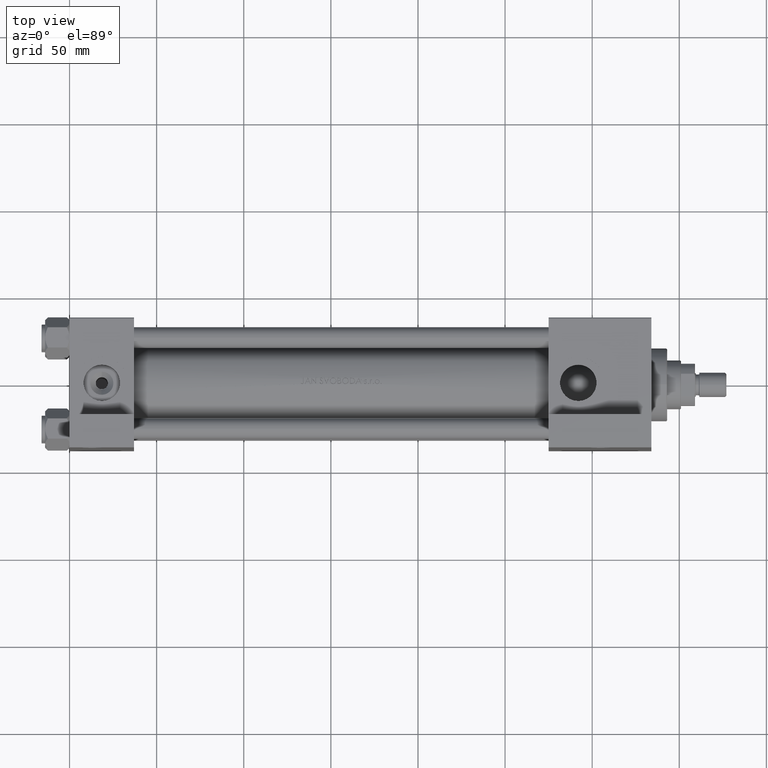
[diagram: clean part render]
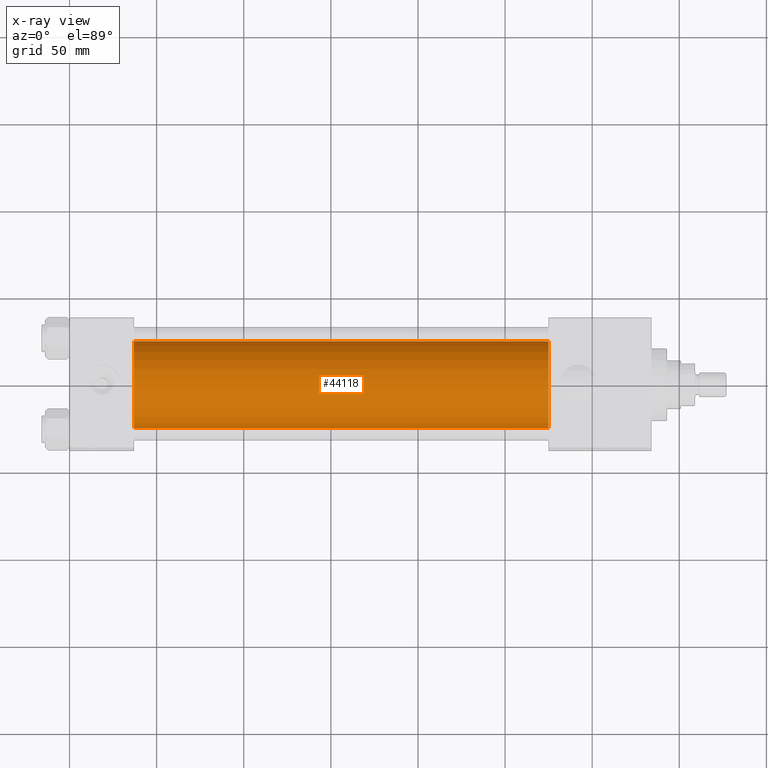
[diagram: x-ray — body ghosted, one internal face saturated and labeled with its STEP entity id]
A machine part, top view, then the same camera in x-ray: the body is ghosted and one INTERNAL B-rep face — a face not visible from any outside direction — is saturated and labeled: STEP entity #44118.
In plain terms, the highlighted cylindrical surface (partial cylindrical patch) has radius 25 mm, axis along (-1, -0, 0).
Its self-contained STEP definition (entity closure, byte-faithful):
#991 = VECTOR ( 'NONE', #7155, 1000.000000000000000 ) ;
#3123 = CARTESIAN_POINT ( 'NONE',  ( 37.00000000000000000, 0.000000000000000000, -0.5000000000000004441 ) ) ;
#4898 = ORIENTED_EDGE ( 'NONE', *, *, #27159, .T. ) ;
#5254 = VERTEX_POINT ( 'NONE', #10265 ) ;
#7155 = DIRECTION ( 'NONE',  ( -1.000000000000000000, -0.000000000000000000, -0.000000000000000000 ) ) ;
#9761 = EDGE_LOOP ( 'NONE', ( #4898, #27174, #27829, #22599 ) ) ;
#10055 = DIRECTION ( 'NONE',  ( 0.000000000000000000, 0.000000000000000000, 1.000000000000000000 ) ) ;
#10265 = CARTESIAN_POINT ( 'NONE',  ( 37.00000000000000000, 0.000000000000000000, 24.50000000000000000 ) ) ;
#11213 = DIRECTION ( 'NONE',  ( 0.000000000000000000, 0.000000000000000000, -1.000000000000000000 ) ) ;
#14069 = CIRCLE ( 'NONE', #17289, 25.00000000000000000 ) ;
#14751 = LINE ( 'NONE', #45617, #991 ) ;
#16947 = CARTESIAN_POINT ( 'NONE',  ( 274.9999999999999432, 3.061616997868383043E-15, -25.50000000000000355 ) ) ;
#17289 = AXIS2_PLACEMENT_3D ( 'NONE', #31836, #47543, #29061 ) ;
#18584 = EDGE_CURVE ( 'NONE', #5254, #21052, #19736, .T. ) ;
#19736 = CIRCLE ( 'NONE', #39967, 25.00000000000000000 ) ;
#21052 = VERTEX_POINT ( 'NONE', #41161 ) ;
#21196 = CARTESIAN_POINT ( 'NONE',  ( 274.9999999999999432, 0.000000000000000000, -0.5000000000000004441 ) ) ;
#22599 = ORIENTED_EDGE ( 'NONE', *, *, #22927, .F. ) ;
#22605 = DIRECTION ( 'NONE',  ( 1.000000000000000000, 0.000000000000000000, 0.000000000000000000 ) ) ;
#22927 = EDGE_CURVE ( 'NONE', #43848, #5254, #14751, .T. ) ;
#25742 = DIRECTION ( 'NONE',  ( -1.000000000000000000, -0.000000000000000000, -0.000000000000000000 ) ) ;
#27159 = EDGE_CURVE ( 'NONE', #43848, #40435, #14069, .T. ) ;
#27174 = ORIENTED_EDGE ( 'NONE', *, *, #38526, .T. ) ;
#27829 = ORIENTED_EDGE ( 'NONE', *, *, #18584, .F. ) ;
#29061 = DIRECTION ( 'NONE',  ( 0.000000000000000000, 0.000000000000000000, -1.000000000000000000 ) ) ;
#29281 = FACE_OUTER_BOUND ( 'NONE', #9761, .T. ) ;
#29529 = CYLINDRICAL_SURFACE ( 'NONE', #47660, 25.00000000000000000 ) ;
#30213 = LINE ( 'NONE', #49962, #33733 ) ;
#31836 = CARTESIAN_POINT ( 'NONE',  ( 274.9999999999999432, 0.000000000000000000, -0.5000000000000004441 ) ) ;
#33733 = VECTOR ( 'NONE', #41846, 1000.000000000000000 ) ;
#36940 = CARTESIAN_POINT ( 'NONE',  ( 274.9999999999999432, 0.000000000000000000, 24.50000000000000000 ) ) ;
#38526 = EDGE_CURVE ( 'NONE', #40435, #21052, #30213, .T. ) ;
#39967 = AXIS2_PLACEMENT_3D ( 'NONE', #3123, #22605, #11213 ) ;
#40435 = VERTEX_POINT ( 'NONE', #16947 ) ;
#41161 = CARTESIAN_POINT ( 'NONE',  ( 37.00000000000000000, 3.061616997868383043E-15, -25.50000000000000355 ) ) ;
#41846 = DIRECTION ( 'NONE',  ( -1.000000000000000000, -0.000000000000000000, -0.000000000000000000 ) ) ;
#43848 = VERTEX_POINT ( 'NONE', #36940 ) ;
#44118 = ADVANCED_FACE ( 'NONE', ( #29281 ), #29529, .F. ) ;
#45617 = CARTESIAN_POINT ( 'NONE',  ( 274.9999999999999432, 0.000000000000000000, 24.50000000000000000 ) ) ;
#47543 = DIRECTION ( 'NONE',  ( 1.000000000000000000, 0.000000000000000000, 0.000000000000000000 ) ) ;
#47660 = AXIS2_PLACEMENT_3D ( 'NONE', #21196, #25742, #10055 ) ;
#49962 = CARTESIAN_POINT ( 'NONE',  ( 274.9999999999999432, 3.061616997868383043E-15, -25.50000000000000355 ) ) ;